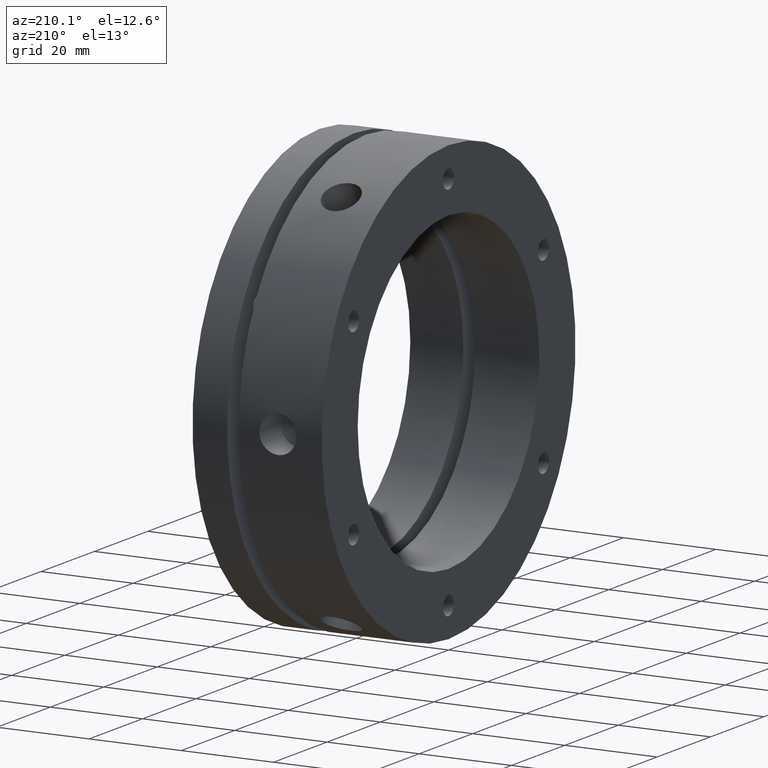
[diagram: clean part render]
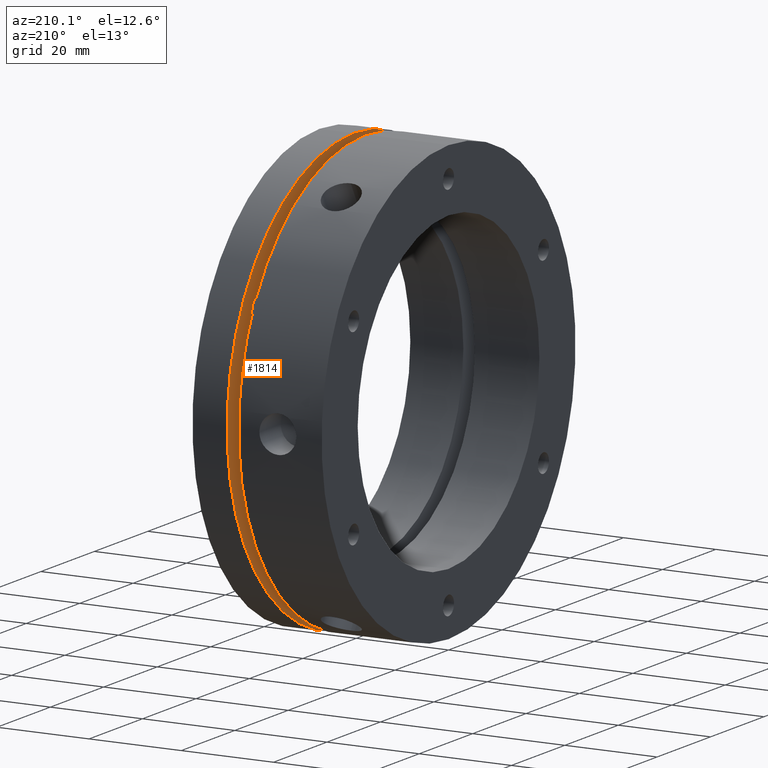
[diagram: same view with one face highlighted and labeled with its STEP entity id]
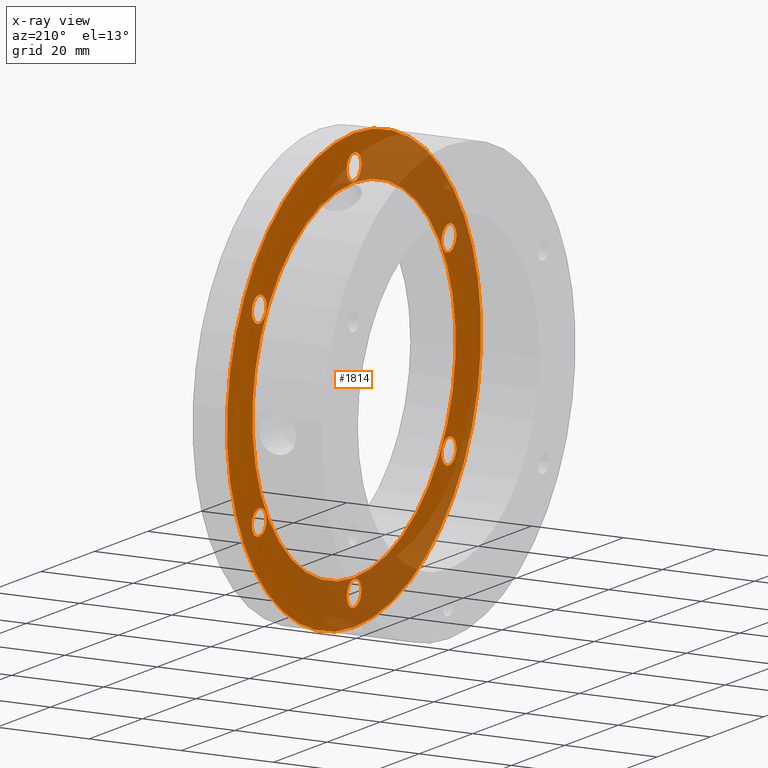
[diagram: x-ray of the same camera — body ghosted, the highlighted face saturated]
A machine part, auxiliary view. The second image highlights one B-rep face of the part: STEP entity #1814.
The next image is the same camera in x-ray: the body ghosted, the highlighted face saturated — about 41% of this face is hidden behind the body in this view.
In plain terms, the highlighted planar face has unit normal (1, 0, 0).
Its self-contained STEP definition (entity closure, byte-faithful):
#126 = EDGE_CURVE ( 'NONE', #1386, #1389, #318, .T. ) ;
#150 = EDGE_CURVE ( 'NONE', #1382, #1385, #348, .T. ) ;
#247 = EDGE_LOOP ( 'NONE', ( #696, #702 ) ) ;
#248 = EDGE_LOOP ( 'NONE', ( #686, #684 ) ) ;
#249 = EDGE_LOOP ( 'NONE', ( #681, #682 ) ) ;
#250 = EDGE_LOOP ( 'NONE', ( #708, #691 ) ) ;
#251 = EDGE_LOOP ( 'NONE', ( #687, #685 ) ) ;
#253 = EDGE_LOOP ( 'NONE', ( #688, #625 ) ) ;
#254 = EDGE_LOOP ( 'NONE', ( #680, #675 ) ) ;
#255 = EDGE_LOOP ( 'NONE', ( #676, #674 ) ) ;
#318 = CIRCLE ( 'NONE', #3026, 2.749999999999999100 ) ;
#348 = CIRCLE ( 'NONE', #3037, 2.749999999999999100 ) ;
#357 = CIRCLE ( 'NONE', #3040, 2.749999999999999100 ) ;
#448 = EDGE_CURVE ( 'NONE', #1389, #1386, #357, .T. ) ;
#490 = AXIS2_PLACEMENT_3D ( 'NONE', #3332, #3330, #3335 ) ;
#625 = ORIENTED_EDGE ( 'NONE', *, *, #3022, .F. ) ;
#674 = ORIENTED_EDGE ( 'NONE', *, *, #2984, .F. ) ;
#675 = ORIENTED_EDGE ( 'NONE', *, *, #448, .F. ) ;
#676 = ORIENTED_EDGE ( 'NONE', *, *, #903, .F. ) ;
#680 = ORIENTED_EDGE ( 'NONE', *, *, #126, .F. ) ;
#681 = ORIENTED_EDGE ( 'NONE', *, *, #150, .F. ) ;
#682 = ORIENTED_EDGE ( 'NONE', *, *, #3025, .F. ) ;
#684 = ORIENTED_EDGE ( 'NONE', *, *, #3024, .F. ) ;
#685 = ORIENTED_EDGE ( 'NONE', *, *, #3023, .F. ) ;
#686 = ORIENTED_EDGE ( 'NONE', *, *, #4714, .F. ) ;
#687 = ORIENTED_EDGE ( 'NONE', *, *, #4721, .F. ) ;
#688 = ORIENTED_EDGE ( 'NONE', *, *, #3111, .F. ) ;
#691 = ORIENTED_EDGE ( 'NONE', *, *, #3012, .F. ) ;
#696 = ORIENTED_EDGE ( 'NONE', *, *, #3131, .F. ) ;
#702 = ORIENTED_EDGE ( 'NONE', *, *, #3021, .F. ) ;
#708 = ORIENTED_EDGE ( 'NONE', *, *, #4724, .F. ) ;
#903 = EDGE_CURVE ( 'NONE', #1390, #1393, #2741, .T. ) ;
#934 = CARTESIAN_POINT ( 'NONE',  ( 20.49999999999999300, 0.0000000000000000000, 38.00000000000000700 ) ) ;
#951 = CARTESIAN_POINT ( 'NONE',  ( 20.49999999999999300, 4.653657836759942700E-015, -38.00000000000000700 ) ) ;
#1262 = VERTEX_POINT ( 'NONE', #951 ) ;
#1366 = VERTEX_POINT ( 'NONE', #3191 ) ;
#1367 = VERTEX_POINT ( 'NONE', #3192 ) ;
#1370 = VERTEX_POINT ( 'NONE', #3195 ) ;
#1373 = VERTEX_POINT ( 'NONE', #3198 ) ;
#1374 = VERTEX_POINT ( 'NONE', #3199 ) ;
#1377 = VERTEX_POINT ( 'NONE', #3202 ) ;
#1378 = VERTEX_POINT ( 'NONE', #3203 ) ;
#1381 = VERTEX_POINT ( 'NONE', #3206 ) ;
#1382 = VERTEX_POINT ( 'NONE', #3207 ) ;
#1385 = VERTEX_POINT ( 'NONE', #3210 ) ;
#1386 = VERTEX_POINT ( 'NONE', #3211 ) ;
#1389 = VERTEX_POINT ( 'NONE', #3214 ) ;
#1390 = VERTEX_POINT ( 'NONE', #3215 ) ;
#1393 = VERTEX_POINT ( 'NONE', #3218 ) ;
#1814 = ADVANCED_FACE ( 'NONE', ( #2788, #2792, #2789, #2791, #2790, #2793, #2794, #2795 ), #3333, .F. ) ;
#2015 = CARTESIAN_POINT ( 'NONE',  ( 20.49999999999999300, 35.50704155516203300, 20.49999999999998900 ) ) ;
#2016 = DIRECTION ( 'NONE',  ( -1.000000000000000000, -0.0000000000000000000, -0.0000000000000000000 ) ) ;
#2017 = DIRECTION ( 'NONE',  ( 0.0000000000000000000, 0.0000000000000000000, -1.000000000000000000 ) ) ;
#2075 = CARTESIAN_POINT ( 'NONE',  ( 20.49999999999999300, 35.50704155516199700, -20.50000000000003600 ) ) ;
#2076 = DIRECTION ( 'NONE',  ( -1.000000000000000000, -0.0000000000000000000, -0.0000000000000000000 ) ) ;
#2077 = DIRECTION ( 'NONE',  ( 0.0000000000000000000, 0.0000000000000000000, -1.000000000000000000 ) ) ;
#2084 = CARTESIAN_POINT ( 'NONE',  ( 20.49999999999999300, 35.50704155516203300, 20.49999999999998900 ) ) ;
#2085 = DIRECTION ( 'NONE',  ( -1.000000000000000000, -0.0000000000000000000, -0.0000000000000000000 ) ) ;
#2086 = DIRECTION ( 'NONE',  ( 0.0000000000000000000, 0.0000000000000000000, -1.000000000000000000 ) ) ;
#2582 = CARTESIAN_POINT ( 'NONE',  ( 20.49999999999999300, 0.0000000000000000000, 0.0000000000000000000 ) ) ;
#2583 = DIRECTION ( 'NONE',  ( 1.000000000000000000, 0.0000000000000000000, 0.0000000000000000000 ) ) ;
#2584 = DIRECTION ( 'NONE',  ( 0.0000000000000000000, 0.0000000000000000000, -1.000000000000000000 ) ) ;
#2741 = CIRCLE ( 'NONE', #3094, 47.50000000000000000 ) ;
#2788 = FACE_BOUND ( 'NONE', #250, .T. ) ;
#2789 = FACE_BOUND ( 'NONE', #253, .T. ) ;
#2790 = FACE_BOUND ( 'NONE', #248, .T. ) ;
#2791 = FACE_BOUND ( 'NONE', #251, .T. ) ;
#2792 = FACE_BOUND ( 'NONE', #247, .T. ) ;
#2793 = FACE_BOUND ( 'NONE', #249, .T. ) ;
#2794 = FACE_BOUND ( 'NONE', #254, .T. ) ;
#2795 = FACE_OUTER_BOUND ( 'NONE', #255, .T. ) ;
#2984 = EDGE_CURVE ( 'NONE', #1393, #1390, #4258, .T. ) ;
#3012 = EDGE_CURVE ( 'NONE', #1262, #4760, #4291, .T. ) ;
#3021 = EDGE_CURVE ( 'NONE', #1367, #1366, #4300, .T. ) ;
#3022 = EDGE_CURVE ( 'NONE', #1373, #1370, #4299, .T. ) ;
#3023 = EDGE_CURVE ( 'NONE', #1377, #1374, #4301, .T. ) ;
#3024 = EDGE_CURVE ( 'NONE', #1381, #1378, #4302, .T. ) ;
#3025 = EDGE_CURVE ( 'NONE', #1385, #1382, #4303, .T. ) ;
#3026 = AXIS2_PLACEMENT_3D ( 'NONE', #2015, #2016, #2017 ) ;
#3037 = AXIS2_PLACEMENT_3D ( 'NONE', #2075, #2076, #2077 ) ;
#3040 = AXIS2_PLACEMENT_3D ( 'NONE', #2084, #2085, #2086 ) ;
#3094 = AXIS2_PLACEMENT_3D ( 'NONE', #2582, #2583, #2584 ) ;
#3111 = EDGE_CURVE ( 'NONE', #1370, #1373, #4304, .T. ) ;
#3131 = EDGE_CURVE ( 'NONE', #1366, #1367, #4338, .T. ) ;
#3191 = CARTESIAN_POINT ( 'NONE',  ( 20.49999999999999300, 0.0000000000000000000, 38.25000000000002800 ) ) ;
#3192 = CARTESIAN_POINT ( 'NONE',  ( 20.49999999999999300, 3.367778697655217600E-016, 43.75000000000002800 ) ) ;
#3195 = CARTESIAN_POINT ( 'NONE',  ( 20.49999999999999300, -35.50704155516201200, 17.75000000000002100 ) ) ;
#3198 = CARTESIAN_POINT ( 'NONE',  ( 20.49999999999999300, -35.50704155516201200, 23.25000000000002100 ) ) ;
#3199 = CARTESIAN_POINT ( 'NONE',  ( 20.49999999999999300, -35.50704155516201900, -23.25000000000000700 ) ) ;
#3202 = CARTESIAN_POINT ( 'NONE',  ( 20.49999999999999300, -35.50704155516201900, -17.75000000000000700 ) ) ;
#3203 = CARTESIAN_POINT ( 'NONE',  ( 20.49999999999999300, -6.661337999999999900E-015, -43.75000000000002800 ) ) ;
#3206 = CARTESIAN_POINT ( 'NONE',  ( 20.49999999999999300, -6.324560130234478200E-015, -38.25000000000002800 ) ) ;
#3207 = CARTESIAN_POINT ( 'NONE',  ( 20.49999999999999300, 35.50704155516199700, -23.25000000000003600 ) ) ;
#3210 = CARTESIAN_POINT ( 'NONE',  ( 20.49999999999999300, 35.50704155516199700, -17.75000000000003600 ) ) ;
#3211 = CARTESIAN_POINT ( 'NONE',  ( 20.49999999999999300, 35.50704155516203300, 17.74999999999999300 ) ) ;
#3214 = CARTESIAN_POINT ( 'NONE',  ( 20.49999999999999300, 35.50704155516203300, 23.24999999999998900 ) ) ;
#3215 = CARTESIAN_POINT ( 'NONE',  ( 20.49999999999999300, 0.0000000000000000000, -47.50000000000000000 ) ) ;
#3218 = CARTESIAN_POINT ( 'NONE',  ( 20.49999999999999300, 5.817072295949928200E-015, 47.50000000000000000 ) ) ;
#3330 = DIRECTION ( 'NONE',  ( 1.000000000000000000, -0.0000000000000000000, 0.0000000000000000000 ) ) ;
#3332 = CARTESIAN_POINT ( 'NONE',  ( 20.49999999999999300, 42.75000000000000000, 0.0000000000000000000 ) ) ;
#3333 = PLANE ( 'NONE',  #490 ) ;
#3335 = DIRECTION ( 'NONE',  ( 0.0000000000000000000, 0.0000000000000000000, -1.000000000000000000 ) ) ;
#3749 = CARTESIAN_POINT ( 'NONE',  ( 20.49999999999999300, 0.0000000000000000000, 0.0000000000000000000 ) ) ;
#3750 = DIRECTION ( 'NONE',  ( 1.000000000000000000, 0.0000000000000000000, 0.0000000000000000000 ) ) ;
#3751 = DIRECTION ( 'NONE',  ( 0.0000000000000000000, 0.0000000000000000000, -1.000000000000000000 ) ) ;
#3828 = CARTESIAN_POINT ( 'NONE',  ( 20.49999999999999300, 0.0000000000000000000, 0.0000000000000000000 ) ) ;
#3829 = DIRECTION ( 'NONE',  ( -1.000000000000000000, 0.0000000000000000000, 0.0000000000000000000 ) ) ;
#3830 = DIRECTION ( 'NONE',  ( 0.0000000000000000000, 0.0000000000000000000, 1.000000000000000000 ) ) ;
#3856 = CARTESIAN_POINT ( 'NONE',  ( 20.49999999999999300, 0.0000000000000000000, 41.00000000000002800 ) ) ;
#3857 = DIRECTION ( 'NONE',  ( -1.000000000000000000, -0.0000000000000000000, -0.0000000000000000000 ) ) ;
#3858 = DIRECTION ( 'NONE',  ( 0.0000000000000000000, 0.0000000000000000000, -1.000000000000000000 ) ) ;
#3859 = CARTESIAN_POINT ( 'NONE',  ( 20.49999999999999300, -35.50704155516201200, 20.50000000000002100 ) ) ;
#3860 = DIRECTION ( 'NONE',  ( -1.000000000000000000, -0.0000000000000000000, -0.0000000000000000000 ) ) ;
#3861 = DIRECTION ( 'NONE',  ( 0.0000000000000000000, 0.0000000000000000000, -1.000000000000000000 ) ) ;
#3862 = CARTESIAN_POINT ( 'NONE',  ( 20.49999999999999300, -35.50704155516201900, -20.50000000000000700 ) ) ;
#3863 = DIRECTION ( 'NONE',  ( -1.000000000000000000, -0.0000000000000000000, -0.0000000000000000000 ) ) ;
#3864 = DIRECTION ( 'NONE',  ( 0.0000000000000000000, 0.0000000000000000000, -1.000000000000000000 ) ) ;
#3866 = CARTESIAN_POINT ( 'NONE',  ( 20.49999999999999300, -6.661337999999999900E-015, -41.00000000000002800 ) ) ;
#3867 = DIRECTION ( 'NONE',  ( -1.000000000000000000, -0.0000000000000000000, -0.0000000000000000000 ) ) ;
#3868 = DIRECTION ( 'NONE',  ( 0.0000000000000000000, 0.0000000000000000000, -1.000000000000000000 ) ) ;
#3871 = CARTESIAN_POINT ( 'NONE',  ( 20.49999999999999300, 35.50704155516199700, -20.50000000000003600 ) ) ;
#3872 = DIRECTION ( 'NONE',  ( -1.000000000000000000, -0.0000000000000000000, -0.0000000000000000000 ) ) ;
#3873 = DIRECTION ( 'NONE',  ( 0.0000000000000000000, 0.0000000000000000000, -1.000000000000000000 ) ) ;
#3879 = CARTESIAN_POINT ( 'NONE',  ( 20.49999999999999300, -35.50704155516201200, 20.50000000000002100 ) ) ;
#3880 = DIRECTION ( 'NONE',  ( -1.000000000000000000, -0.0000000000000000000, -0.0000000000000000000 ) ) ;
#3881 = DIRECTION ( 'NONE',  ( 0.0000000000000000000, 0.0000000000000000000, -1.000000000000000000 ) ) ;
#3927 = CARTESIAN_POINT ( 'NONE',  ( 20.49999999999999300, 0.0000000000000000000, 41.00000000000002800 ) ) ;
#3928 = DIRECTION ( 'NONE',  ( -1.000000000000000000, -0.0000000000000000000, -0.0000000000000000000 ) ) ;
#3929 = DIRECTION ( 'NONE',  ( 0.0000000000000000000, 0.0000000000000000000, -1.000000000000000000 ) ) ;
#4071 = CARTESIAN_POINT ( 'NONE',  ( 20.49999999999999300, -6.661337999999999900E-015, -41.00000000000002800 ) ) ;
#4072 = DIRECTION ( 'NONE',  ( -1.000000000000000000, -0.0000000000000000000, -0.0000000000000000000 ) ) ;
#4073 = DIRECTION ( 'NONE',  ( 0.0000000000000000000, 0.0000000000000000000, -1.000000000000000000 ) ) ;
#4086 = CARTESIAN_POINT ( 'NONE',  ( 20.49999999999999300, -35.50704155516201900, -20.50000000000000700 ) ) ;
#4087 = DIRECTION ( 'NONE',  ( -1.000000000000000000, -0.0000000000000000000, -0.0000000000000000000 ) ) ;
#4088 = DIRECTION ( 'NONE',  ( 0.0000000000000000000, 0.0000000000000000000, -1.000000000000000000 ) ) ;
#4094 = CARTESIAN_POINT ( 'NONE',  ( 20.49999999999999300, 0.0000000000000000000, 0.0000000000000000000 ) ) ;
#4095 = DIRECTION ( 'NONE',  ( -1.000000000000000000, 0.0000000000000000000, 0.0000000000000000000 ) ) ;
#4096 = DIRECTION ( 'NONE',  ( 0.0000000000000000000, 0.0000000000000000000, 1.000000000000000000 ) ) ;
#4258 = CIRCLE ( 'NONE', #4469, 47.50000000000000000 ) ;
#4291 = CIRCLE ( 'NONE', #4494, 38.00000000000000700 ) ;
#4299 = CIRCLE ( 'NONE', #4504, 2.749999999999999100 ) ;
#4300 = CIRCLE ( 'NONE', #4503, 2.750000000000002700 ) ;
#4301 = CIRCLE ( 'NONE', #4505, 2.749999999999999100 ) ;
#4302 = CIRCLE ( 'NONE', #4506, 2.750000000000002700 ) ;
#4303 = CIRCLE ( 'NONE', #4507, 2.749999999999999100 ) ;
#4304 = CIRCLE ( 'NONE', #4509, 2.749999999999999100 ) ;
#4338 = CIRCLE ( 'NONE', #4516, 2.750000000000002700 ) ;
#4384 = CIRCLE ( 'NONE', #4529, 2.750000000000002700 ) ;
#4400 = CIRCLE ( 'NONE', #4532, 2.749999999999999100 ) ;
#4406 = CIRCLE ( 'NONE', #4534, 38.00000000000000700 ) ;
#4469 = AXIS2_PLACEMENT_3D ( 'NONE', #3749, #3750, #3751 ) ;
#4494 = AXIS2_PLACEMENT_3D ( 'NONE', #3828, #3829, #3830 ) ;
#4503 = AXIS2_PLACEMENT_3D ( 'NONE', #3856, #3857, #3858 ) ;
#4504 = AXIS2_PLACEMENT_3D ( 'NONE', #3859, #3860, #3861 ) ;
#4505 = AXIS2_PLACEMENT_3D ( 'NONE', #3862, #3863, #3864 ) ;
#4506 = AXIS2_PLACEMENT_3D ( 'NONE', #3866, #3867, #3868 ) ;
#4507 = AXIS2_PLACEMENT_3D ( 'NONE', #3871, #3872, #3873 ) ;
#4509 = AXIS2_PLACEMENT_3D ( 'NONE', #3879, #3880, #3881 ) ;
#4516 = AXIS2_PLACEMENT_3D ( 'NONE', #3927, #3928, #3929 ) ;
#4529 = AXIS2_PLACEMENT_3D ( 'NONE', #4071, #4072, #4073 ) ;
#4532 = AXIS2_PLACEMENT_3D ( 'NONE', #4086, #4087, #4088 ) ;
#4534 = AXIS2_PLACEMENT_3D ( 'NONE', #4094, #4095, #4096 ) ;
#4714 = EDGE_CURVE ( 'NONE', #1378, #1381, #4384, .T. ) ;
#4721 = EDGE_CURVE ( 'NONE', #1374, #1377, #4400, .T. ) ;
#4724 = EDGE_CURVE ( 'NONE', #4760, #1262, #4406, .T. ) ;
#4760 = VERTEX_POINT ( 'NONE', #934 ) ;